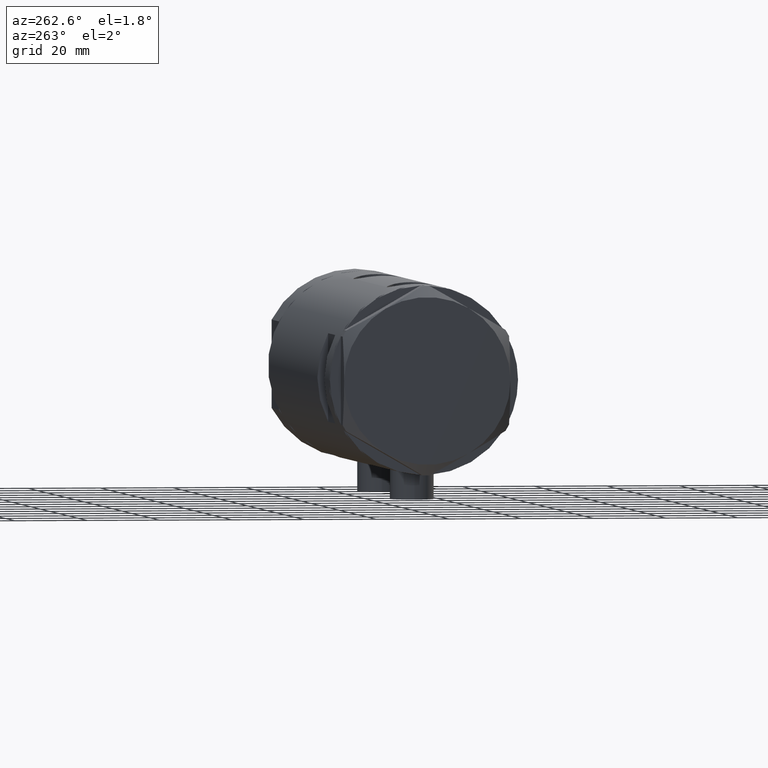
[diagram: clean part render]
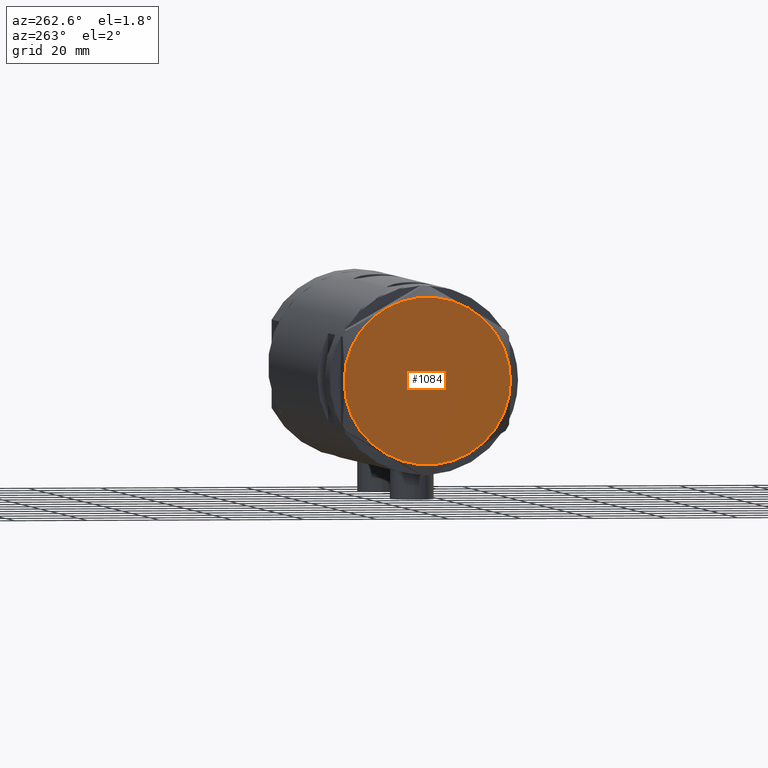
[diagram: same view with one face highlighted and labeled with its STEP entity id]
A machine part, auxiliary view. The second image highlights one B-rep face of the part: STEP entity #1084.
In plain terms, the highlighted planar face has unit normal (-1, -0, 0).
Its self-contained STEP definition (entity closure, byte-faithful):
#315 = AXIS2_PLACEMENT_3D ( 'NONE', #4178, #4545, #3401 ) ;
#662 = CARTESIAN_POINT ( 'NONE',  ( 0.000000000000000000, 0.000000000000000000, 7.000000000000000000 ) ) ;
#745 = VERTEX_POINT ( 'NONE', #4422 ) ;
#792 = CIRCLE ( 'NONE', #315, 23.00000000000004619 ) ;
#825 = CARTESIAN_POINT ( 'NONE',  ( -23.00000000000004619, -8.112498833180673323E-14, 7.000000000000000000 ) ) ;
#1049 = DIRECTION ( 'NONE',  ( 1.000000000000000000, 0.000000000000000000, -0.000000000000000000 ) ) ;
#1084 = ADVANCED_FACE ( 'NONE', ( #4372 ), #4007, .T. ) ;
#1087 = ORIENTED_EDGE ( 'NONE', *, *, #2485, .T. ) ;
#1094 = CARTESIAN_POINT ( 'NONE',  ( 11.50000000000018296, -19.91858428704203732, 7.000000000000000000 ) ) ;
#1332 = CARTESIAN_POINT ( 'NONE',  ( 0.000000000000000000, 0.000000000000000000, 7.000000000000000000 ) ) ;
#1353 = AXIS2_PLACEMENT_3D ( 'NONE', #4016, #3647, #2581 ) ;
#1437 = EDGE_CURVE ( 'NONE', #1818, #2637, #792, .T. ) ;
#1485 = CIRCLE ( 'NONE', #2747, 23.00000000000004619 ) ;
#1691 = EDGE_CURVE ( 'NONE', #2473, #3422, #1485, .T. ) ;
#1707 = ORIENTED_EDGE ( 'NONE', *, *, #2896, .T. ) ;
#1720 = ORIENTED_EDGE ( 'NONE', *, *, #1437, .T. ) ;
#1818 = VERTEX_POINT ( 'NONE', #3454 ) ;
#1839 = ORIENTED_EDGE ( 'NONE', *, *, #3334, .T. ) ;
#2167 = DIRECTION ( 'NONE',  ( 1.000000000000000000, 0.000000000000000000, 0.000000000000000000 ) ) ;
#2174 = ORIENTED_EDGE ( 'NONE', *, *, #4855, .T. ) ;
#2234 = CARTESIAN_POINT ( 'NONE',  ( 0.000000000000000000, 0.000000000000000000, 7.000000000000000000 ) ) ;
#2284 = DIRECTION ( 'NONE',  ( 1.000000000000000000, 0.000000000000000000, 0.000000000000000000 ) ) ;
#2392 = AXIS2_PLACEMENT_3D ( 'NONE', #662, #3639, #1049 ) ;
#2473 = VERTEX_POINT ( 'NONE', #1094 ) ;
#2474 = EDGE_LOOP ( 'NONE', ( #4228, #1839, #2174, #1720, #1087, #1707 ) ) ;
#2485 = EDGE_CURVE ( 'NONE', #2637, #2668, #3379, .T. ) ;
#2581 = DIRECTION ( 'NONE',  ( 1.000000000000000000, 0.000000000000000000, 0.000000000000000000 ) ) ;
#2637 = VERTEX_POINT ( 'NONE', #825 ) ;
#2668 = VERTEX_POINT ( 'NONE', #3209 ) ;
#2679 = AXIS2_PLACEMENT_3D ( 'NONE', #2234, #4485, #3402 ) ;
#2747 = AXIS2_PLACEMENT_3D ( 'NONE', #1332, #4708, #2824 ) ;
#2824 = DIRECTION ( 'NONE',  ( 1.000000000000000000, 0.000000000000000000, 0.000000000000000000 ) ) ;
#2896 = EDGE_CURVE ( 'NONE', #2668, #2473, #3301, .T. ) ;
#3209 = CARTESIAN_POINT ( 'NONE',  ( -11.49999999999990585, -19.91858428704219364, 7.000000000000000000 ) ) ;
#3215 = CIRCLE ( 'NONE', #2679, 23.00000000000004619 ) ;
#3301 = CIRCLE ( 'NONE', #3444, 23.00000000000004619 ) ;
#3334 = EDGE_CURVE ( 'NONE', #3422, #745, #3215, .T. ) ;
#3379 = CIRCLE ( 'NONE', #4220, 23.00000000000004619 ) ;
#3401 = DIRECTION ( 'NONE',  ( 1.000000000000000000, 0.000000000000000000, 0.000000000000000000 ) ) ;
#3402 = DIRECTION ( 'NONE',  ( 1.000000000000000000, 0.000000000000000000, 0.000000000000000000 ) ) ;
#3422 = VERTEX_POINT ( 'NONE', #4652 ) ;
#3444 = AXIS2_PLACEMENT_3D ( 'NONE', #3725, #4762, #2167 ) ;
#3454 = CARTESIAN_POINT ( 'NONE',  ( -11.50000000000004441, 19.91858428704211548, 7.000000000000000000 ) ) ;
#3620 = CIRCLE ( 'NONE', #1353, 23.00000000000004619 ) ;
#3639 = DIRECTION ( 'NONE',  ( 0.000000000000000000, 0.000000000000000000, 1.000000000000000000 ) ) ;
#3647 = DIRECTION ( 'NONE',  ( 0.000000000000000000, 0.000000000000000000, 1.000000000000000000 ) ) ;
#3725 = CARTESIAN_POINT ( 'NONE',  ( 0.000000000000000000, 0.000000000000000000, 7.000000000000000000 ) ) ;
#3853 = CARTESIAN_POINT ( 'NONE',  ( 0.000000000000000000, 0.000000000000000000, 7.000000000000000000 ) ) ;
#4007 = PLANE ( 'NONE',  #2392 ) ;
#4016 = CARTESIAN_POINT ( 'NONE',  ( 0.000000000000000000, 0.000000000000000000, 7.000000000000000000 ) ) ;
#4178 = CARTESIAN_POINT ( 'NONE',  ( 0.000000000000000000, 0.000000000000000000, 7.000000000000000000 ) ) ;
#4220 = AXIS2_PLACEMENT_3D ( 'NONE', #3853, #4830, #2284 ) ;
#4228 = ORIENTED_EDGE ( 'NONE', *, *, #1691, .T. ) ;
#4372 = FACE_OUTER_BOUND ( 'NONE', #2474, .T. ) ;
#4422 = CARTESIAN_POINT ( 'NONE',  ( 11.49999999999990408, 19.91858428704219364, 7.000000000000000000 ) ) ;
#4485 = DIRECTION ( 'NONE',  ( 0.000000000000000000, 0.000000000000000000, 1.000000000000000000 ) ) ;
#4545 = DIRECTION ( 'NONE',  ( 0.000000000000000000, 0.000000000000000000, 1.000000000000000000 ) ) ;
#4652 = CARTESIAN_POINT ( 'NONE',  ( 22.99999999999995026, 2.373657066004705010E-13, 7.000000000000000000 ) ) ;
#4708 = DIRECTION ( 'NONE',  ( 0.000000000000000000, 0.000000000000000000, 1.000000000000000000 ) ) ;
#4762 = DIRECTION ( 'NONE',  ( 0.000000000000000000, 0.000000000000000000, 1.000000000000000000 ) ) ;
#4830 = DIRECTION ( 'NONE',  ( 0.000000000000000000, 0.000000000000000000, 1.000000000000000000 ) ) ;
#4855 = EDGE_CURVE ( 'NONE', #745, #1818, #3620, .T. ) ;